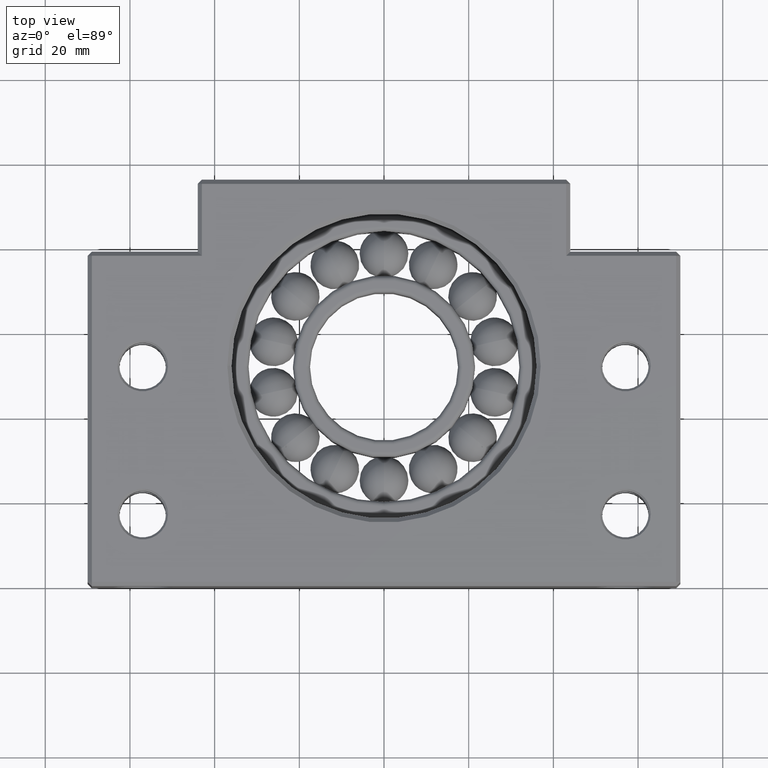
[diagram: clean part render]
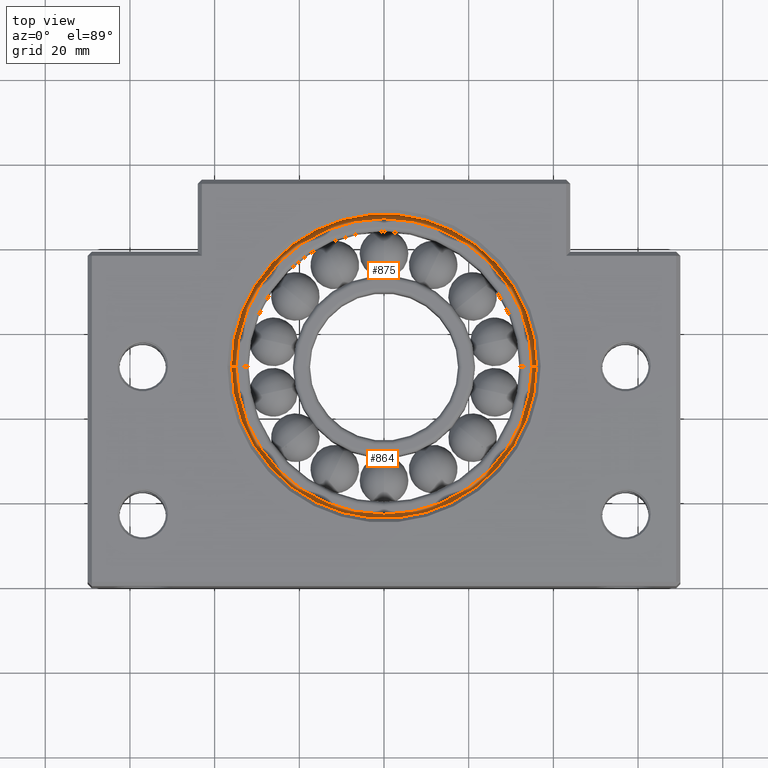
[diagram: same view with one multi-face feature highlighted, each face labeled with its STEP entity id]
A machine part, top view. The highlighted faces form ONE feature: a constant-radius fillet chain: 2 tangent blend faces with common blend radius 1.1 mm. The faces share edges in the B-rep.
Their STEP definitions:
[1] entity #875 (Torus):
#687 = VERTEX_POINT ( 'NONE', #2531 ) ;
#774 = VERTEX_POINT ( 'NONE', #2651 ) ;
#782 = EDGE_CURVE ( 'NONE', #774, #687, #2702, .T. ) ;
#828 = ORIENTED_EDGE ( 'NONE', *, *, #866, .F. ) ;
#829 = VERTEX_POINT ( 'NONE', #2795 ) ;
#837 = ORIENTED_EDGE ( 'NONE', *, *, #782, .T. ) ;
#865 = EDGE_LOOP ( 'NONE', ( #837, #871, #828, #868 ) ) ;
#866 = EDGE_CURVE ( 'NONE', #867, #829, #2910, .T. ) ;
#867 = VERTEX_POINT ( 'NONE', #2901 ) ;
#868 = ORIENTED_EDGE ( 'NONE', *, *, #869, .F. ) ;
#869 = EDGE_CURVE ( 'NONE', #774, #867, #2900, .T. ) ;
#870 = EDGE_CURVE ( 'NONE', #687, #829, #2895, .T. ) ;
#871 = ORIENTED_EDGE ( 'NONE', *, *, #870, .T. ) ;
#875 = ADVANCED_FACE ( 'NONE', ( #2886 ), #2885, .T. ) ;
#2531 = CARTESIAN_POINT ( 'NONE',  ( -35.99999999999997900, 52.00000000000000000, 7.399999999999999500 ) ) ;
#2651 = CARTESIAN_POINT ( 'NONE',  ( 36.00000000000000700, 51.99999999999999300, 7.399999999999999500 ) ) ;
#2698 = DIRECTION ( 'NONE',  ( 1.000000000000000000, 0.0000000000000000000, 0.0000000000000000000 ) ) ;
#2699 = DIRECTION ( 'NONE',  ( -0.0000000000000000000, -0.0000000000000000000, 1.000000000000000000 ) ) ;
#2700 = CARTESIAN_POINT ( 'NONE',  ( 1.387778780781445700E-014, 51.99999999999999300, 7.399999999999999500 ) ) ;
#2701 = AXIS2_PLACEMENT_3D ( 'NONE', #2700, #2699, #2698 ) ;
#2702 = CIRCLE ( 'NONE', #2701, 35.99999999999999300 ) ;
#2795 = CARTESIAN_POINT ( 'NONE',  ( -34.89999999999998400, 52.00000000000000000, 8.499999999999996400 ) ) ;
#2881 = DIRECTION ( 'NONE',  ( 1.000000000000000000, 0.0000000000000000000, 0.0000000000000000000 ) ) ;
#2882 = DIRECTION ( 'NONE',  ( -0.0000000000000000000, -0.0000000000000000000, 1.000000000000000000 ) ) ;
#2883 = CARTESIAN_POINT ( 'NONE',  ( 1.387778780781445700E-014, 51.99999999999999300, 7.399999999999999500 ) ) ;
#2884 = AXIS2_PLACEMENT_3D ( 'NONE', #2883, #2882, #2881 ) ;
#2885 = TOROIDAL_SURFACE ( 'NONE', #2884, 34.89999999999999900, 1.099999999999993900 ) ;
#2886 = FACE_OUTER_BOUND ( 'NONE', #865, .T. ) ;
#2891 = DIRECTION ( 'NONE',  ( -1.000000000000000000, 0.0000000000000000000, 0.0000000000000000000 ) ) ;
#2892 = DIRECTION ( 'NONE',  ( 1.224606353822377300E-016, 1.000000000000000000, 0.0000000000000000000 ) ) ;
#2893 = CARTESIAN_POINT ( 'NONE',  ( -34.89999999999998400, 52.00000000000000000, 7.399999999999999500 ) ) ;
#2894 = AXIS2_PLACEMENT_3D ( 'NONE', #2893, #2892, #2891 ) ;
#2895 = CIRCLE ( 'NONE', #2894, 1.099999999999996800 ) ;
#2896 = DIRECTION ( 'NONE',  ( 0.0000000000000000000, 0.0000000000000000000, -1.000000000000000000 ) ) ;
#2897 = DIRECTION ( 'NONE',  ( 0.0000000000000000000, -1.000000000000000000, 0.0000000000000000000 ) ) ;
#2898 = CARTESIAN_POINT ( 'NONE',  ( 34.90000000000001300, 51.99999999999999300, 7.399999999999999500 ) ) ;
#2899 = AXIS2_PLACEMENT_3D ( 'NONE', #2898, #2897, #2896 ) ;
#2900 = CIRCLE ( 'NONE', #2899, 1.099999999999994300 ) ;
#2901 = CARTESIAN_POINT ( 'NONE',  ( 34.90000000000001300, 51.99999999999999300, 8.499999999999996400 ) ) ;
#2902 = DIRECTION ( 'NONE',  ( 1.000000000000000000, 0.0000000000000000000, 0.0000000000000000000 ) ) ;
#2903 = DIRECTION ( 'NONE',  ( -0.0000000000000000000, -0.0000000000000000000, 1.000000000000000000 ) ) ;
#2904 = CARTESIAN_POINT ( 'NONE',  ( 1.387778780781445700E-014, 51.99999999999999300, 8.499999999999996400 ) ) ;
#2905 = AXIS2_PLACEMENT_3D ( 'NONE', #2904, #2903, #2902 ) ;
#2910 = CIRCLE ( 'NONE', #2905, 34.89999999999999900 ) ;
[2] entity #864 (Torus):
#687 = VERTEX_POINT ( 'NONE', #2531 ) ;
#706 = EDGE_LOOP ( 'NONE', ( #825, #883, #884, #880 ) ) ;
#774 = VERTEX_POINT ( 'NONE', #2651 ) ;
#825 = ORIENTED_EDGE ( 'NONE', *, *, #870, .F. ) ;
#829 = VERTEX_POINT ( 'NONE', #2795 ) ;
#864 = ADVANCED_FACE ( 'NONE', ( #2869 ), #2868, .T. ) ;
#867 = VERTEX_POINT ( 'NONE', #2901 ) ;
#869 = EDGE_CURVE ( 'NONE', #774, #867, #2900, .T. ) ;
#870 = EDGE_CURVE ( 'NONE', #687, #829, #2895, .T. ) ;
#877 = EDGE_CURVE ( 'NONE', #829, #867, #2940, .T. ) ;
#880 = ORIENTED_EDGE ( 'NONE', *, *, #877, .F. ) ;
#883 = ORIENTED_EDGE ( 'NONE', *, *, #887, .T. ) ;
#884 = ORIENTED_EDGE ( 'NONE', *, *, #869, .T. ) ;
#887 = EDGE_CURVE ( 'NONE', #687, #774, #2930, .T. ) ;
#2531 = CARTESIAN_POINT ( 'NONE',  ( -35.99999999999997900, 52.00000000000000000, 7.399999999999999500 ) ) ;
#2651 = CARTESIAN_POINT ( 'NONE',  ( 36.00000000000000700, 51.99999999999999300, 7.399999999999999500 ) ) ;
#2795 = CARTESIAN_POINT ( 'NONE',  ( -34.89999999999998400, 52.00000000000000000, 8.499999999999996400 ) ) ;
#2868 = TOROIDAL_SURFACE ( 'NONE', #2909, 34.89999999999999900, 1.099999999999993900 ) ;
#2869 = FACE_OUTER_BOUND ( 'NONE', #706, .T. ) ;
#2891 = DIRECTION ( 'NONE',  ( -1.000000000000000000, 0.0000000000000000000, 0.0000000000000000000 ) ) ;
#2892 = DIRECTION ( 'NONE',  ( 1.224606353822377300E-016, 1.000000000000000000, 0.0000000000000000000 ) ) ;
#2893 = CARTESIAN_POINT ( 'NONE',  ( -34.89999999999998400, 52.00000000000000000, 7.399999999999999500 ) ) ;
#2894 = AXIS2_PLACEMENT_3D ( 'NONE', #2893, #2892, #2891 ) ;
#2895 = CIRCLE ( 'NONE', #2894, 1.099999999999996800 ) ;
#2896 = DIRECTION ( 'NONE',  ( 0.0000000000000000000, 0.0000000000000000000, -1.000000000000000000 ) ) ;
#2897 = DIRECTION ( 'NONE',  ( 0.0000000000000000000, -1.000000000000000000, 0.0000000000000000000 ) ) ;
#2898 = CARTESIAN_POINT ( 'NONE',  ( 34.90000000000001300, 51.99999999999999300, 7.399999999999999500 ) ) ;
#2899 = AXIS2_PLACEMENT_3D ( 'NONE', #2898, #2897, #2896 ) ;
#2900 = CIRCLE ( 'NONE', #2899, 1.099999999999994300 ) ;
#2901 = CARTESIAN_POINT ( 'NONE',  ( 34.90000000000001300, 51.99999999999999300, 8.499999999999996400 ) ) ;
#2906 = DIRECTION ( 'NONE',  ( 1.000000000000000000, 0.0000000000000000000, 0.0000000000000000000 ) ) ;
#2907 = DIRECTION ( 'NONE',  ( -0.0000000000000000000, -0.0000000000000000000, 1.000000000000000000 ) ) ;
#2908 = CARTESIAN_POINT ( 'NONE',  ( 1.387778780781445700E-014, 51.99999999999999300, 7.399999999999999500 ) ) ;
#2909 = AXIS2_PLACEMENT_3D ( 'NONE', #2908, #2907, #2906 ) ;
#2926 = DIRECTION ( 'NONE',  ( 1.000000000000000000, 0.0000000000000000000, 0.0000000000000000000 ) ) ;
#2927 = DIRECTION ( 'NONE',  ( -0.0000000000000000000, -0.0000000000000000000, 1.000000000000000000 ) ) ;
#2928 = CARTESIAN_POINT ( 'NONE',  ( 1.387778780781445700E-014, 51.99999999999999300, 7.399999999999999500 ) ) ;
#2929 = AXIS2_PLACEMENT_3D ( 'NONE', #2928, #2927, #2926 ) ;
#2930 = CIRCLE ( 'NONE', #2929, 35.99999999999999300 ) ;
#2937 = DIRECTION ( 'NONE',  ( 1.000000000000000000, 0.0000000000000000000, 0.0000000000000000000 ) ) ;
#2938 = DIRECTION ( 'NONE',  ( -0.0000000000000000000, -0.0000000000000000000, 1.000000000000000000 ) ) ;
#2939 = AXIS2_PLACEMENT_3D ( 'NONE', #2945, #2938, #2937 ) ;
#2940 = CIRCLE ( 'NONE', #2939, 34.89999999999999900 ) ;
#2945 = CARTESIAN_POINT ( 'NONE',  ( 1.387778780781445700E-014, 51.99999999999999300, 8.499999999999996400 ) ) ;